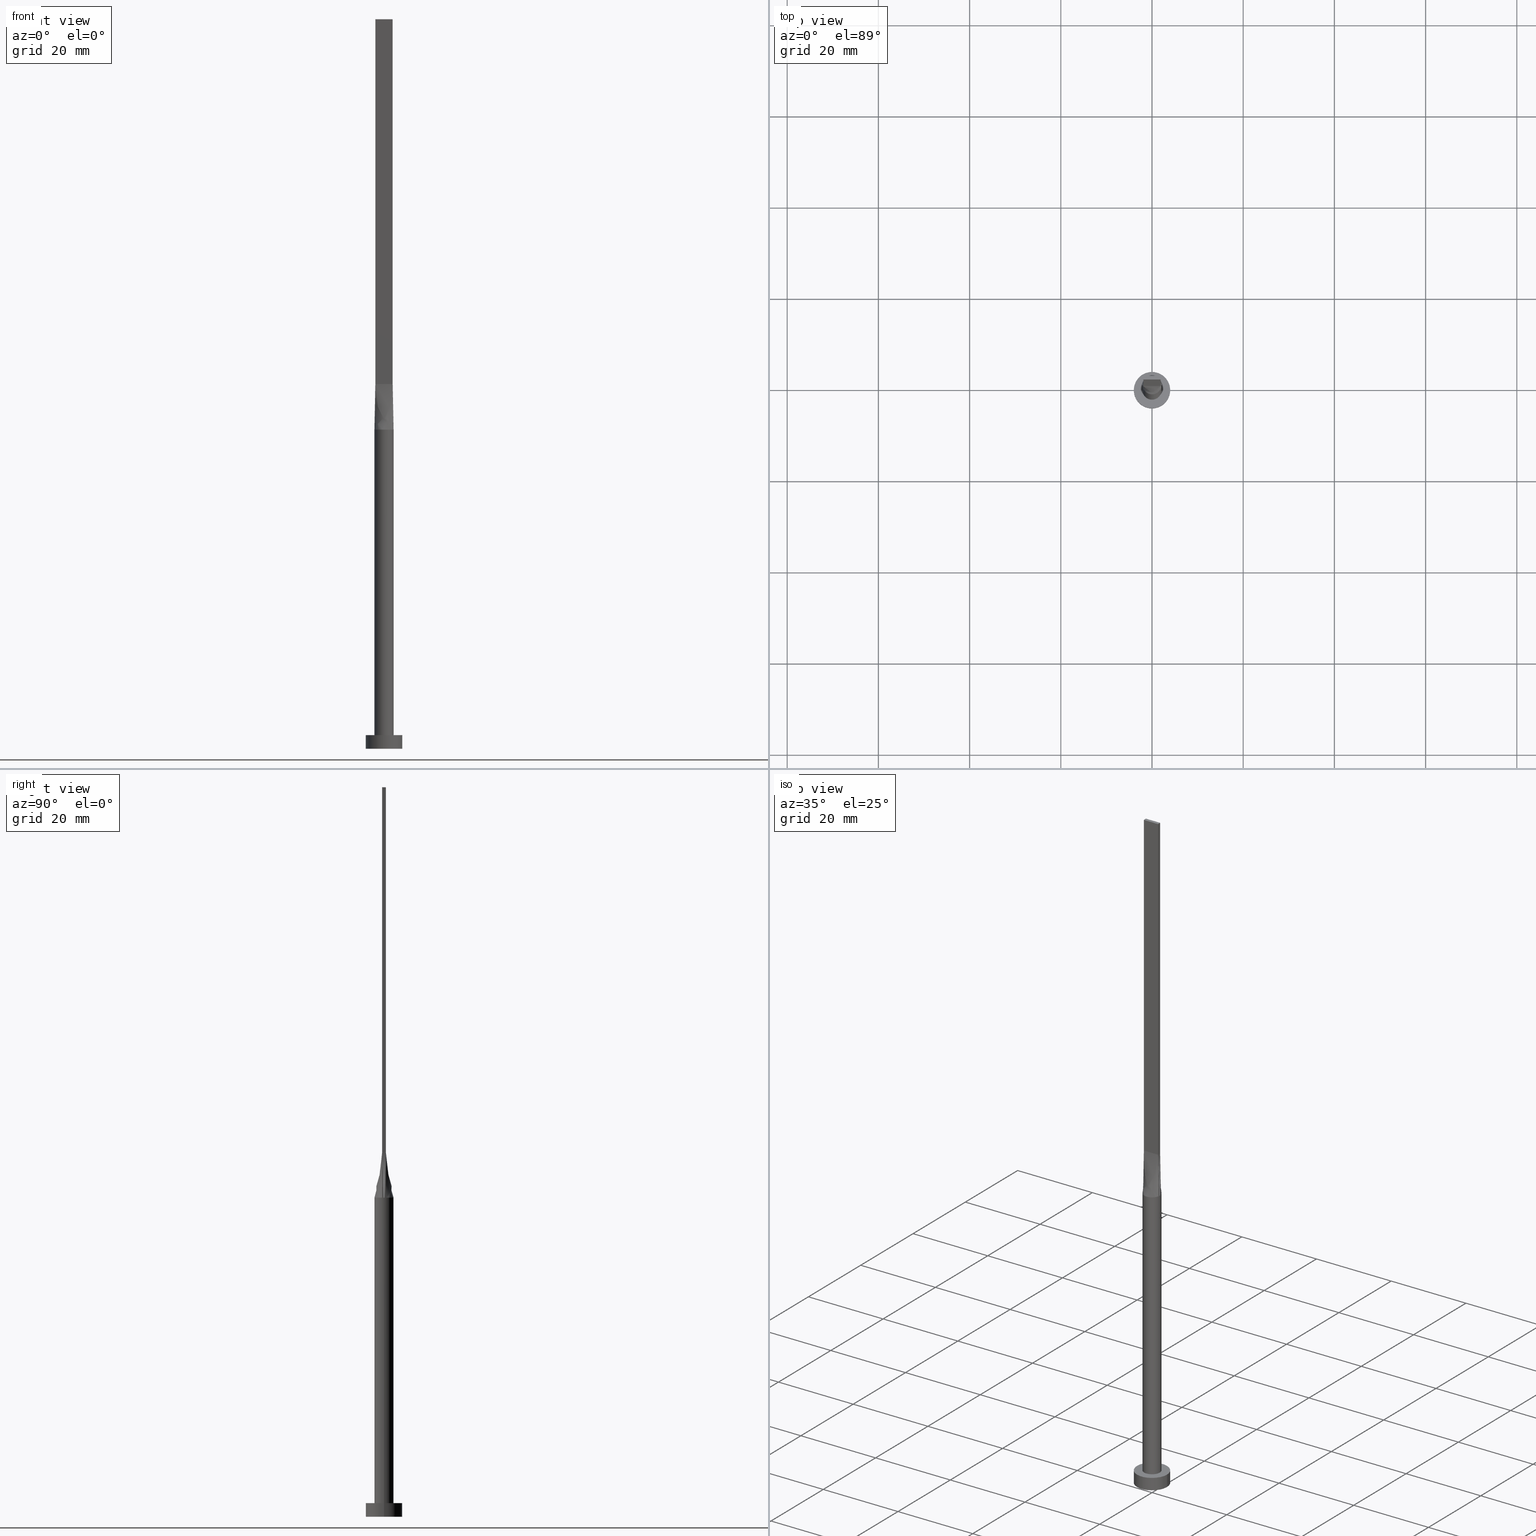
[diagram: canonical four-view strip — front | top / right | iso, engineering-drawing reading convention]
A machine part, canonical four-view strip (front | top / right | iso — engineering-drawing reading convention). The complete STEP part file that produces these views, byte-faithful:
ISO-10303-21;
HEADER;
FILE_DESCRIPTION (( 'STEP AP203' ),
    '1' );
FILE_NAME ('7342.STEP',
    '2026-02-12T09:03:49',
    ( '' ),
    ( '' ),
    'SwSTEP 2.0',
    'SolidWorks 2019',
    '' );
FILE_SCHEMA (( 'CONFIG_CONTROL_DESIGN' ));
ENDSEC;

DATA;
#1 = EDGE_CURVE ( 'NONE', #187, #110, #105, .T. ) ;
#2 = DIRECTION ( 'NONE',  ( -1.000000000000000000, 0.000000000000000000, 0.000000000000000000 ) ) ;
#3 = AXIS2_PLACEMENT_3D ( 'NONE', #476, #127, #439 ) ;
#4 =( GEOMETRIC_REPRESENTATION_CONTEXT ( 3 ) GLOBAL_UNCERTAINTY_ASSIGNED_CONTEXT ( ( #76 ) ) GLOBAL_UNIT_ASSIGNED_CONTEXT ( ( #72, #200, #67 ) ) REPRESENTATION_CONTEXT ( 'NONE', 'WORKASPACE' ) );
#5 = CARTESIAN_POINT ( 'NONE',  ( 0.3166666666666693164, -0.3999999999999996891, 79.99999999999998579 ) ) ;
#6 = CARTESIAN_POINT ( 'NONE',  ( -0.7916666666666639651, -0.3999999999999996336, 79.99999999999998579 ) ) ;
#7 = DATE_TIME_ROLE ( 'creation_date' ) ;
#8 = EDGE_LOOP ( 'NONE', ( #168, #121, #254, #238 ) ) ;
#9 = AXIS2_PLACEMENT_3D ( 'NONE', #568, #26, #203 ) ;
#10 = DATE_AND_TIME ( #272, #555 ) ;
#11 = CARTESIAN_POINT ( 'NONE',  ( -1.769939800381045147, 1.149026496286139842, 70.00000000000001421 ) ) ;
#12 = APPROVAL ( #546, 'NEUR�EN�' ) ;
#13 = APPROVAL_ROLE ( '' ) ;
#14 = PLANE ( 'NONE',  #81 ) ;
#15 = CARTESIAN_POINT ( 'NONE',  ( 0.000000000000000000, 0.000000000000000000, 0.000000000000000000 ) ) ;
#16 = ORIENTED_EDGE ( 'NONE', *, *, #98, .T. ) ;
#17 = COORDINATED_UNIVERSAL_TIME_OFFSET ( 1, 0, .AHEAD. ) ;
#18 = CARTESIAN_POINT ( 'NONE',  ( 0.1583333333333330206, 0.4000000000000001887, 80.00000000000000000 ) ) ;
#19 = ORIENTED_EDGE ( 'NONE', *, *, #530, .T. ) ;
#20 = CIRCLE ( 'NONE', #458, 2.100000000000000089 ) ;
#21 = DIRECTION ( 'NONE',  ( 8.131516293641283255E-16, 1.000000000000000000, 0.000000000000000000 ) ) ;
#22 = DATE_AND_TIME ( #416, #209 ) ;
#23 = PLANE ( 'NONE',  #310 ) ;
#24 = DIRECTION ( 'NONE',  ( 0.000000000000000000, 0.000000000000000000, 1.000000000000000000 ) ) ;
#25 = ORIENTED_EDGE ( 'NONE', *, *, #321, .T. ) ;
#26 = DIRECTION ( 'NONE',  ( 0.000000000000000000, -1.000000000000000000, 0.000000000000000000 ) ) ;
#27 = ADVANCED_FACE ( 'NONE', ( #249 ), #316, .T. ) ;
#28 = CARTESIAN_POINT ( 'NONE',  ( 0.000000000000000000, 0.000000000000000000, 0.000000000000000000 ) ) ;
#29 = VERTEX_POINT ( 'NONE', #498 ) ;
#30 = DIRECTION ( 'NONE',  ( 0.01549351246150993712, -0.003261792097159904157, 0.9998746480354023802 ) ) ;
#31 = DIRECTION ( 'NONE',  ( 1.000000000000000000, -2.710505431213761578E-16, 0.000000000000000000 ) ) ;
#32 = ORIENTED_EDGE ( 'NONE', *, *, #46, .T. ) ;
#33 = APPROVAL_PERSON_ORGANIZATION ( #497, #12, #55 ) ;
#34 = CARTESIAN_POINT ( 'NONE',  ( -1.638039177766652976, 1.336522195786985057, 70.00000000000001421 ) ) ;
#35 = VERTEX_POINT ( 'NONE', #467 ) ;
#36 = VECTOR ( 'NONE', #74, 1000.000000000000000 ) ;
#37 = AXIS2_PLACEMENT_3D ( 'NONE', #459, #420, #150 ) ;
#38 = CARTESIAN_POINT ( 'NONE',  ( 0.000000000000000000, 0.000000000000000000, 70.00000000000000000 ) ) ;
#39 = DIRECTION ( 'NONE',  ( -0.000000000000000000, -0.000000000000000000, -1.000000000000000000 ) ) ;
#40 = CARTESIAN_POINT ( 'NONE',  ( -1.769939800381045147, 1.149026496286139842, 70.00000000000001421 ) ) ;
#41 = CARTESIAN_POINT ( 'NONE',  ( -4.000000000000000000, 0.000000000000000000, 3.000000000000000000 ) ) ;
#42 = CARTESIAN_POINT ( 'NONE',  ( -0.2839879338753505955, 2.100000000000000533, 70.00000000000001421 ) ) ;
#43 = FACE_OUTER_BOUND ( 'NONE', #8, .T. ) ;
#44 = AXIS2_PLACEMENT_3D ( 'NONE', #513, #97, #297 ) ;
#45 = CARTESIAN_POINT ( 'NONE',  ( 2.054954548472172959, 0.4326220102046685612, 70.00000000000000000 ) ) ;
#46 = EDGE_CURVE ( 'NONE', #75, #29, #89, .T. ) ;
#47 = CARTESIAN_POINT ( 'NONE',  ( -0.6333333333333305282, -0.3999999999999996336, 79.99999999999998579 ) ) ;
#48 = CARTESIAN_POINT ( 'NONE',  ( -2.054954548472173403, -0.4326220102046674509, 70.00000000000000000 ) ) ;
#49 = CARTESIAN_POINT ( 'NONE',  ( -1.069497409764672113, -1.827724181718571650, 70.00000000000000000 ) ) ;
#50 = EDGE_CURVE ( 'NONE', #35, #152, #66, .T. ) ;
#51 = CARTESIAN_POINT ( 'NONE',  ( 1.769939800381043815, -1.149026496286140731, 70.00000000000001421 ) ) ;
#52 = APPROVAL_DATE_TIME ( #142, #405 ) ;
#53 = CARTESIAN_POINT ( 'NONE',  ( -0.5670887265440306413, -2.040296735810464668, 70.00000000000001421 ) ) ;
#54 = DIRECTION ( 'NONE',  ( -0.000000000000000000, -0.000000000000000000, -1.000000000000000000 ) ) ;
#55 = APPROVAL_ROLE ( '' ) ;
#56 = CC_DESIGN_DATE_AND_TIME_ASSIGNMENT ( #463, #149, ( #174 ) ) ;
#57 = CARTESIAN_POINT ( 'NONE',  ( -0.1583333333333336312, 0.4000000000000001887, 79.99999999999998579 ) ) ;
#58 = DIRECTION ( 'NONE',  ( 1.000000000000000000, 0.000000000000000000, 0.000000000000000000 ) ) ;
#59 = B_SPLINE_CURVE_WITH_KNOTS ( 'NONE', 3,
 ( #77, #389, #392, #485, #123, #251, #296, #442, #205, #42, #172, #342, #528, #34, #40, #78, #531, #85 ),
 .UNSPECIFIED., .F., .F.,
 ( 4, 2, 2, 2, 2, 2, 2, 2, 4 ),
 ( 0.000000000000000000, 0.1250000000000000000, 0.2500000000000000000, 0.3750000000000000000, 0.5000000000000000000, 0.6250000000000000000, 0.7500000000000000000, 0.8750000000000000000, 1.000000000000000000 ),
 .UNSPECIFIED. ) ;
#60 = EDGE_LOOP ( 'NONE', ( #115, #120, #516, #163, #114 ) ) ;
#61 = APPROVAL_STATUS ( 'not_yet_approved' ) ;
#62 = CARTESIAN_POINT ( 'NONE',  ( -2.100000000000000089, 0.000000000000000000, 70.00000000000000000 ) ) ;
#63 = CARTESIAN_POINT ( 'NONE',  ( -2.054954548472173403, 0.4326220102046675064, 70.00000000000000000 ) ) ;
#64 = PRODUCT_DEFINITION_SHAPE ( 'NONE', 'NONE',  #517 ) ;
#65 = ORIENTED_EDGE ( 'NONE', *, *, #358, .F. ) ;
#66 = LINE ( 'NONE', #518, #36 ) ;
#67 =( NAMED_UNIT ( * ) SI_UNIT ( $, .STERADIAN. ) SOLID_ANGLE_UNIT ( ) );
#68 = CARTESIAN_POINT ( 'NONE',  ( 0.2839879338753505955, 2.100000000000000533, 70.00000000000000000 ) ) ;
#69 = ORIENTED_EDGE ( 'NONE', *, *, #257, .F. ) ;
#70 = CLOSED_SHELL ( 'NONE', ( #27, #477, #218, #520, #575, #478, #496, #352, #507, #406, #101, #82, #368, #229, #279 ) ) ;
#71 = CARTESIAN_POINT ( 'NONE',  ( 1.899999999999999023, -0.3999999999999998002, 160.0000000000000000 ) ) ;
#72 =( LENGTH_UNIT ( ) NAMED_UNIT ( * ) SI_UNIT ( .MILLI., .METRE. ) );
#73 = ORIENTED_EDGE ( 'NONE', *, *, #413, .T. ) ;
#74 = DIRECTION ( 'NONE',  ( 1.000000000000000000, -5.706327223607920020E-17, 0.000000000000000000 ) ) ;
#75 = VERTEX_POINT ( 'NONE', #239 ) ;
#76 = UNCERTAINTY_MEASURE_WITH_UNIT (LENGTH_MEASURE( 1.000000000000000082E-05 ), #72, 'distance_accuracy_value', 'NONE');
#77 = CARTESIAN_POINT ( 'NONE',  ( 2.055132260641998609, 0.4326595789354660826, 70.00000000000000000 ) ) ;
#78 = CARTESIAN_POINT ( 'NONE',  ( -1.960396204527856456, 0.7808940436533434726, 70.00000000000001421 ) ) ;
#79 = CIRCLE ( 'NONE', #141, 2.100000000000000089 ) ;
#80 = CARTESIAN_POINT ( 'NONE',  ( 4.000000000000000000, 4.898587196589412829E-16, 3.000000000000000000 ) ) ;
#81 = AXIS2_PLACEMENT_3D ( 'NONE', #247, #329, #289 ) ;
#82 = ADVANCED_FACE ( 'NONE', ( #286 ), #424, .F. ) ;
#83 = DIRECTION ( 'NONE',  ( -2.710505431213761085E-16, 1.000000000000000000, -0.000000000000000000 ) ) ;
#84 = CARTESIAN_POINT ( 'NONE',  ( 1.977477274236086213, 0.4163110051023343749, 75.00000000000001421 ) ) ;
#85 = CARTESIAN_POINT ( 'NONE',  ( -2.055148177435248691, 0.4326628259079252081, 70.00000000000000000 ) ) ;
#86 = CARTESIAN_POINT ( 'NONE',  ( 1.899999999999999689, -0.1333333333333336368, 79.99999999999998579 ) ) ;
#87 = EDGE_CURVE ( 'NONE', #152, #524, #381, .T. ) ;
#88 = LINE ( 'NONE', #580, #446 ) ;
#89 = CIRCLE ( 'NONE', #519, 4.000000000000000000 ) ;
#90 = CARTESIAN_POINT ( 'NONE',  ( -1.899999999999999689, -0.1333333333333330539, 79.99999999999998579 ) ) ;
#91 = CARTESIAN_POINT ( 'NONE',  ( 2.054954548472172959, -0.4326220102046682281, 70.00000000000000000 ) ) ;
#92 = CC_DESIGN_PERSON_AND_ORGANIZATION_ASSIGNMENT ( #411, #552, ( #174 ) ) ;
#93 = EDGE_CURVE ( 'NONE', #563, #363, #455, .T. ) ;
#94 = CARTESIAN_POINT ( 'NONE',  ( -2.054954548472173403, -0.4326220102046674509, 70.00000000000000000 ) ) ;
#95 = AXIS2_PLACEMENT_3D ( 'NONE', #161, #318, #156 ) ;
#96 = CARTESIAN_POINT ( 'NONE',  ( -1.108333333333330950, -0.3999999999999995781, 79.99999999999998579 ) ) ;
#97 = DIRECTION ( 'NONE',  ( 0.000000000000000000, 0.000000000000000000, 1.000000000000000000 ) ) ;
#98 = EDGE_CURVE ( 'NONE', #152, #118, #167, .T. ) ;
#99 = ORIENTED_EDGE ( 'NONE', *, *, #413, .F. ) ;
#100 = CARTESIAN_POINT ( 'NONE',  ( -0.5670887265440298641, 2.040296735810464668, 70.00000000000001421 ) ) ;
#101 = ADVANCED_FACE ( 'NONE', ( #410 ), #431, .F. ) ;
#102 = SECURITY_CLASSIFICATION_LEVEL ( 'unclassified' ) ;
#103 = DIRECTION ( 'NONE',  ( -0.000000000000000000, -0.000000000000000000, -1.000000000000000000 ) ) ;
#104 = CARTESIAN_POINT ( 'NONE',  ( -1.069497409764671003, 1.827724181718571872, 70.00000000000000000 ) ) ;
#105 = CIRCLE ( 'NONE', #44, 2.100000000000000089 ) ;
#106 = EDGE_LOOP ( 'NONE', ( #376, #19, #124, #495, #99, #338 ) ) ;
#107 = VECTOR ( 'NONE', #508, 1000.000000000000000 ) ;
#108 = LINE ( 'NONE', #278, #506 ) ;
#109 = CARTESIAN_POINT ( 'NONE',  ( 2.055132260641998609, 0.4326595789354660826, 70.00000000000000000 ) ) ;
#110 = VERTEX_POINT ( 'NONE', #206 ) ;
#111 = APPLICATION_PROTOCOL_DEFINITION ( 'international standard', 'config_control_design', 1994, #262 ) ;
#112 = CARTESIAN_POINT ( 'NONE',  ( -1.741666666666666474, 0.4000000000000002442, 79.99999999999998579 ) ) ;
#113 = ORIENTED_EDGE ( 'NONE', *, *, #250, .F. ) ;
#114 = ORIENTED_EDGE ( 'NONE', *, *, #393, .F. ) ;
#115 = ORIENTED_EDGE ( 'NONE', *, *, #313, .T. ) ;
#116 = CARTESIAN_POINT ( 'NONE',  ( -1.899999999999999911, -0.3999999999999995781, 80.00000000000000000 ) ) ;
#117 = LOCAL_TIME ( 10, 3, 49.00000000000000000, #549 ) ;
#118 = VERTEX_POINT ( 'NONE', #522 ) ;
#119 = AXIS2_PLACEMENT_3D ( 'NONE', #217, #396, #176 ) ;
#120 = ORIENTED_EDGE ( 'NONE', *, *, #400, .T. ) ;
#121 = ORIENTED_EDGE ( 'NONE', *, *, #426, .T. ) ;
#122 = VERTEX_POINT ( 'NONE', #304 ) ;
#123 = CARTESIAN_POINT ( 'NONE',  ( 1.638039177766652754, 1.336522195786985057, 70.00000000000001421 ) ) ;
#124 = ORIENTED_EDGE ( 'NONE', *, *, #188, .T. ) ;
#125 = CARTESIAN_POINT ( 'NONE',  ( -1.977477274236086657, 0.4163110051023338753, 75.00000000000001421 ) ) ;
#126 = DIRECTION ( 'NONE',  ( 0.000000000000000000, 0.000000000000000000, 1.000000000000000000 ) ) ;
#127 = DIRECTION ( 'NONE',  ( -1.000000000000000000, 8.131516293641283255E-16, 0.000000000000000000 ) ) ;
#128 = CARTESIAN_POINT ( 'NONE',  ( 2.099516882689679953, 0.1457539759246152533, 70.00000000000000000 ) ) ;
#129 = CARTESIAN_POINT ( 'NONE',  ( 0.000000000000000000, 0.000000000000000000, 3.000000000000000000 ) ) ;
#130 = LINE ( 'NONE', #80, #265 ) ;
#131 = EDGE_CURVE ( 'NONE', #475, #276, #59, .T. ) ;
#132 = CARTESIAN_POINT ( 'NONE',  ( 2.084662771283844140, -0.2915079518492312838, 70.00000000000000000 ) ) ;
#133 = DIRECTION ( 'NONE',  ( -0.01549351246150995794, 0.003261792097160017348, 0.9998746480354023802 ) ) ;
#134 = DIRECTION ( 'NONE',  ( -1.000000000000000000, 0.000000000000000000, 0.000000000000000000 ) ) ;
#135 = AXIS2_PLACEMENT_3D ( 'NONE', #527, #126, #300 ) ;
#136 = CARTESIAN_POINT ( 'NONE',  ( -1.288188016604684627, -1.676316068528187930, 70.00000000000001421 ) ) ;
#137 = EDGE_CURVE ( 'NONE', #276, #363, #525, .T. ) ;
#138 = CARTESIAN_POINT ( 'NONE',  ( -1.638039177766652310, -1.336522195786983724, 69.99999999999998579 ) ) ;
#139 = CARTESIAN_POINT ( 'NONE',  ( -1.769939800381044481, -1.149026496286139176, 70.00000000000000000 ) ) ;
#140 = CC_DESIGN_APPROVAL ( #405, ( #226 ) ) ;
#141 = AXIS2_PLACEMENT_3D ( 'NONE', #302, #481, #532 ) ;
#142 = DATE_AND_TIME ( #191, #117 ) ;
#143 = ORIENTED_EDGE ( 'NONE', *, *, #1, .F. ) ;
#144 = CARTESIAN_POINT ( 'NONE',  ( -0.7916666666666668517, 0.4000000000000002442, 79.99999999999998579 ) ) ;
#145 = EDGE_CURVE ( 'NONE', #118, #202, #169, .T. ) ;
#146 = PERSON_AND_ORGANIZATION_ROLE ( 'creator' ) ;
#147 = CARTESIAN_POINT ( 'NONE',  ( 1.899999999999999689, 0.4000000000000002442, 160.0000000000000000 ) ) ;
#148 = CARTESIAN_POINT ( 'NONE',  ( 0.6333333333333331927, 0.4000000000000001887, 79.99999999999998579 ) ) ;
#149 = DATE_TIME_ROLE ( 'classification_date' ) ;
#150 = DIRECTION ( 'NONE',  ( 1.000000000000000000, 0.000000000000000000, 0.000000000000000000 ) ) ;
#151 = LINE ( 'NONE', #457, #182 ) ;
#152 = VERTEX_POINT ( 'NONE', #436 ) ;
#153 = PRODUCT ( '7342', '7342', '', ( #564 ) ) ;
#154 = CARTESIAN_POINT ( 'NONE',  ( 1.960396204527856900, 0.7808940436533436946, 70.00000000000000000 ) ) ;
#155 = ORIENTED_EDGE ( 'NONE', *, *, #93, .F. ) ;
#156 = DIRECTION ( 'NONE',  ( -1.000000000000000000, 0.000000000000000000, 0.000000000000000000 ) ) ;
#157 = EDGE_LOOP ( 'NONE', ( #281, #245, #248, #512 ) ) ;
#158 = PERSON_AND_ORGANIZATION ( #422, #492 ) ;
#159 = DIRECTION ( 'NONE',  ( 1.000000000000000000, 0.000000000000000000, 0.000000000000000000 ) ) ;
#160 = ORIENTED_EDGE ( 'NONE', *, *, #565, .T. ) ;
#161 = CARTESIAN_POINT ( 'NONE',  ( 0.000000000000000000, 0.000000000000000000, 70.00000000000000000 ) ) ;
#162 = FACE_OUTER_BOUND ( 'NONE', #430, .T. ) ;
#163 = ORIENTED_EDGE ( 'NONE', *, *, #145, .F. ) ;
#164 = PLANE ( 'NONE',  #3 ) ;
#165 = PRODUCT_RELATED_PRODUCT_CATEGORY ( 'detail', '', ( #153 ) ) ;
#166 = VECTOR ( 'NONE', #571, 1000.000000000000000 ) ;
#167 = LINE ( 'NONE', #560, #438 ) ;
#168 = ORIENTED_EDGE ( 'NONE', *, *, #540, .T. ) ;
#169 = LINE ( 'NONE', #216, #253 ) ;
#170 = EDGE_CURVE ( 'NONE', #363, #293, #252, .T. ) ;
#171 = CARTESIAN_POINT ( 'NONE',  ( 0.000000000000000000, 0.000000000000000000, 160.0000000000000000 ) ) ;
#172 = CARTESIAN_POINT ( 'NONE',  ( -0.5670887265440298641, 2.040296735810464668, 70.00000000000001421 ) ) ;
#173 = PLANE ( 'NONE',  #221 ) ;
#174 = SECURITY_CLASSIFICATION ( '', '', #102 ) ;
#175 = CARTESIAN_POINT ( 'NONE',  ( -2.055145036631130129, -0.4326623253166036465, 70.00000000000000000 ) ) ;
#176 = DIRECTION ( 'NONE',  ( -1.000000000000000000, 5.706327223607918787E-17, 0.000000000000000000 ) ) ;
#177 = CARTESIAN_POINT ( 'NONE',  ( 2.099758441344840243, 4.928843353830161703E-16, 70.00000000000000000 ) ) ;
#178 = LINE ( 'NONE', #41, #488 ) ;
#179 = CARTESIAN_POINT ( 'NONE',  ( -1.899999999999999689, -0.2666666666666662744, 79.99999999999998579 ) ) ;
#180 = CARTESIAN_POINT ( 'NONE',  ( -1.899999999999999911, -0.3999999999999995781, 80.00000000000000000 ) ) ;
#181 = VECTOR ( 'NONE', #219, 1000.000000000000000 ) ;
#182 = VECTOR ( 'NONE', #325, 1000.000000000000000 ) ;
#183 = EDGE_CURVE ( 'NONE', #202, #363, #395, .T. ) ;
#184 = CARTESIAN_POINT ( 'NONE',  ( -1.583333333333332149, -0.3999999999999995226, 79.99999999999998579 ) ) ;
#185 = CARTESIAN_POINT ( 'NONE',  ( 1.741666666666666030, -0.3999999999999997446, 79.99999999999998579 ) ) ;
#186 = SHAPE_DEFINITION_REPRESENTATION ( #64, #360 ) ;
#187 = VERTEX_POINT ( 'NONE', #339 ) ;
#188 = EDGE_CURVE ( 'NONE', #110, #187, #427, .T. ) ;
#189 = CARTESIAN_POINT ( 'NONE',  ( 0.000000000000000000, 0.000000000000000000, 0.000000000000000000 ) ) ;
#190 = CARTESIAN_POINT ( 'NONE',  ( 1.108333333333333171, 0.4000000000000002442, 79.99999999999998579 ) ) ;
#191 = CALENDAR_DATE ( 2026, 12, 2 ) ;
#192 = LINE ( 'NONE', #62, #213 ) ;
#193 = DIRECTION ( 'NONE',  ( 0.000000000000000000, 0.000000000000000000, 1.000000000000000000 ) ) ;
#194 = VERTEX_POINT ( 'NONE', #175 ) ;
#195 = PERSON_AND_ORGANIZATION ( #422, #492 ) ;
#196 = DIRECTION ( 'NONE',  ( -0.000000000000000000, -0.000000000000000000, -1.000000000000000000 ) ) ;
#197 = CARTESIAN_POINT ( 'NONE',  ( 0.000000000000000000, 0.000000000000000000, 3.000000000000000000 ) ) ;
#198 = ORIENTED_EDGE ( 'NONE', *, *, #450, .T. ) ;
#199 = DIRECTION ( 'NONE',  ( 1.000000000000000000, 0.000000000000000000, 0.000000000000000000 ) ) ;
#200 =( NAMED_UNIT ( * ) PLANE_ANGLE_UNIT ( ) SI_UNIT ( $, .RADIAN. ) );
#201 = CARTESIAN_POINT ( 'NONE',  ( 0.3166666666666663743, 0.4000000000000001887, 79.99999999999998579 ) ) ;
#202 = VERTEX_POINT ( 'NONE', #444 ) ;
#203 = DIRECTION ( 'NONE',  ( 0.000000000000000000, -0.000000000000000000, -1.000000000000000000 ) ) ;
#204 = EDGE_LOOP ( 'NONE', ( #386, #32 ) ) ;
#205 = CARTESIAN_POINT ( 'NONE',  ( 0.2839879338753505955, 2.100000000000000533, 70.00000000000000000 ) ) ;
#206 = CARTESIAN_POINT ( 'NONE',  ( 2.100000000000000089, 2.571758278209441957E-16, 3.000000000000000000 ) ) ;
#207 = EDGE_LOOP ( 'NONE', ( #471, #466, #437, #514 ) ) ;
#208 = EDGE_CURVE ( 'NONE', #293, #194, #210, .T. ) ;
#209 = LOCAL_TIME ( 10, 3, 49.00000000000000000, #240 ) ;
#210 = LINE ( 'NONE', #384, #244 ) ;
#211 = CIRCLE ( 'NONE', #355, 4.000000000000000000 ) ;
#212 = ORIENTED_EDGE ( 'NONE', *, *, #250, .T. ) ;
#213 = VECTOR ( 'NONE', #196, 1000.000000000000000 ) ;
#214 = DIRECTION ( 'NONE',  ( 0.000000000000000000, 0.000000000000000000, 1.000000000000000000 ) ) ;
#215 = DIRECTION ( 'NONE',  ( 0.000000000000000000, 0.000000000000000000, 1.000000000000000000 ) ) ;
#216 = CARTESIAN_POINT ( 'NONE',  ( 1.899999999999999689, 0.4000000000000002442, 80.00000000000000000 ) ) ;
#217 = CARTESIAN_POINT ( 'NONE',  ( -1.899999999999999911, -0.3999999999999995781, 160.0000000000000000 ) ) ;
#218 = ADVANCED_FACE ( 'NONE', ( #345 ), #298, .T. ) ;
#219 = DIRECTION ( 'NONE',  ( -1.000000000000000000, -0.000000000000000000, -0.000000000000000000 ) ) ;
#220 = MANIFOLD_SOLID_BREP ( 'P�idat vysunut�m5', #70 ) ;
#221 = AXIS2_PLACEMENT_3D ( 'NONE', #171, #222, #349 ) ;
#222 = DIRECTION ( 'NONE',  ( 0.000000000000000000, 0.000000000000000000, 1.000000000000000000 ) ) ;
#223 = CARTESIAN_POINT ( 'NONE',  ( 2.055161022591414977, -0.4326655822303633325, 70.00000000000000000 ) ) ;
#224 = CARTESIAN_POINT ( 'NONE',  ( -1.899999999999999467, 0.1333333333333335535, 79.99999999999998579 ) ) ;
#225 = CARTESIAN_POINT ( 'NONE',  ( 1.899999999999999023, -0.3999999999999998002, 80.00000000000000000 ) ) ;
#226 = PRODUCT_DEFINITION_FORMATION_WITH_SPECIFIED_SOURCE ( 'LIBOVOLN�', '', #153, .NOT_KNOWN. ) ;
#227 = FACE_OUTER_BOUND ( 'NONE', #207, .T. ) ;
#228 = CARTESIAN_POINT ( 'NONE',  ( 1.960396204527856234, -0.7808940436533445828, 70.00000000000001421 ) ) ;
#229 = ADVANCED_FACE ( 'NONE', ( #567 ), #164, .F. ) ;
#230 = CARTESIAN_POINT ( 'NONE',  ( -0.2839879338753514282, -2.100000000000000533, 70.00000000000000000 ) ) ;
#231 = DIRECTION ( 'NONE',  ( -0.000000000000000000, -0.000000000000000000, -1.000000000000000000 ) ) ;
#232 = PERSON_AND_ORGANIZATION_ROLE ( 'design_supplier' ) ;
#233 = CARTESIAN_POINT ( 'NONE',  ( 0.7916666666666665186, 0.4000000000000001887, 79.99999999999998579 ) ) ;
#234 = PERSON_AND_ORGANIZATION ( #422, #492 ) ;
#235 = DIRECTION ( 'NONE',  ( 0.000000000000000000, 0.000000000000000000, 1.000000000000000000 ) ) ;
#236 = ORIENTED_EDGE ( 'NONE', *, *, #183, .F. ) ;
#237 = CYLINDRICAL_SURFACE ( 'NONE', #460, 4.000000000000000000 ) ;
#238 = ORIENTED_EDGE ( 'NONE', *, *, #87, .T. ) ;
#239 = CARTESIAN_POINT ( 'NONE',  ( 4.000000000000000000, 4.898587196589412829E-16, 3.000000000000000000 ) ) ;
#240 = COORDINATED_UNIVERSAL_TIME_OFFSET ( 1, 0, .AHEAD. ) ;
#241 = CC_DESIGN_APPROVAL ( #12, ( #174 ) ) ;
#242 = PERSON_AND_ORGANIZATION_ROLE ( 'design_owner' ) ;
#243 = CARTESIAN_POINT ( 'NONE',  ( -0.2839879338753505955, 2.100000000000000533, 70.00000000000001421 ) ) ;
#244 = VECTOR ( 'NONE', #256, 1000.000000000000227 ) ;
#245 = ORIENTED_EDGE ( 'NONE', *, *, #98, .F. ) ;
#246 = CARTESIAN_POINT ( 'NONE',  ( -1.899999999999999689, 0.4000000000000002442, 160.0000000000000000 ) ) ;
#247 = CARTESIAN_POINT ( 'NONE',  ( 0.000000000000000000, 0.000000000000000000, 3.000000000000000000 ) ) ;
#248 = ORIENTED_EDGE ( 'NONE', *, *, #50, .F. ) ;
#249 = FACE_OUTER_BOUND ( 'NONE', #106, .T. ) ;
#250 = EDGE_CURVE ( 'NONE', #122, #194, #314, .T. ) ;
#251 = CARTESIAN_POINT ( 'NONE',  ( 1.288188016604684183, 1.676316068528189041, 70.00000000000001421 ) ) ;
#252 = LINE ( 'NONE', #259, #166 ) ;
#253 = VECTOR ( 'NONE', #83, 1000.000000000000000 ) ;
#254 = ORIENTED_EDGE ( 'NONE', *, *, #50, .T. ) ;
#255 = CARTESIAN_POINT ( 'NONE',  ( -1.899999999999999911, -0.3999999999999995781, 80.00000000000000000 ) ) ;
#256 = DIRECTION ( 'NONE',  ( -0.01549351246150991457, -0.003261792097159958367, -0.9998746480354023802 ) ) ;
#257 = EDGE_CURVE ( 'NONE', #194, #335, #79, .T. ) ;
#258 = CARTESIAN_POINT ( 'NONE',  ( 1.899999999999999467, 0.1333333333333330262, 79.99999999999998579 ) ) ;
#259 = CARTESIAN_POINT ( 'NONE',  ( -1.899999999999999689, 0.4000000000000002442, 80.00000000000000000 ) ) ;
#260 = CARTESIAN_POINT ( 'NONE',  ( 1.899999999999999467, 0.2666666666666664964, 79.99999999999998579 ) ) ;
#261 = CARTESIAN_POINT ( 'NONE',  ( -2.055148177435248691, 0.4326628259079252081, 70.00000000000000000 ) ) ;
#262 = APPLICATION_CONTEXT ( 'configuration controlled 3d designs of mechanical parts and assemblies' ) ;
#263 = CARTESIAN_POINT ( 'NONE',  ( -1.266666666666664609, -0.3999999999999995226, 79.99999999999998579 ) ) ;
#264 = CARTESIAN_POINT ( 'NONE',  ( -2.054954548472173403, 0.4326220102046679505, 70.00000000000000000 ) ) ;
#265 = VECTOR ( 'NONE', #39, 1000.000000000000000 ) ;
#266 = CARTESIAN_POINT ( 'NONE',  ( 0.1583333333333359905, -0.3999999999999996336, 79.99999999999998579 ) ) ;
#267 = CARTESIAN_POINT ( 'NONE',  ( 0.6333333333333355242, -0.3999999999999997446, 79.99999999999998579 ) ) ;
#268 = CARTESIAN_POINT ( 'NONE',  ( -1.899999999999999689, 0.4000000000000002442, 160.0000000000000000 ) ) ;
#269 = DIRECTION ( 'NONE',  ( 0.000000000000000000, 0.000000000000000000, 1.000000000000000000 ) ) ;
#270 = CARTESIAN_POINT ( 'NONE',  ( -1.899999999999999689, 0.4000000000000002442, 80.00000000000000000 ) ) ;
#271 = CC_DESIGN_SECURITY_CLASSIFICATION ( #174, ( #226 ) ) ;
#272 = CALENDAR_DATE ( 2026, 12, 2 ) ;
#273 = AXIS2_PLACEMENT_3D ( 'NONE', #38, #214, #572 ) ;
#274 = CARTESIAN_POINT ( 'NONE',  ( 0.000000000000000000, 0.000000000000000000, 70.00000000000000000 ) ) ;
#275 = CIRCLE ( 'NONE', #483, 4.000000000000000000 ) ;
#276 = VERTEX_POINT ( 'NONE', #261 ) ;
#277 = CALENDAR_DATE ( 2026, 12, 2 ) ;
#278 = CARTESIAN_POINT ( 'NONE',  ( 2.100000000000000089, 2.571758278209441957E-16, 70.00000000000000000 ) ) ;
#279 = ADVANCED_FACE ( 'NONE', ( #43 ), #173, .T. ) ;
#280 = FACE_OUTER_BOUND ( 'NONE', #343, .T. ) ;
#281 = ORIENTED_EDGE ( 'NONE', *, *, #456, .T. ) ;
#282 = PERSON_AND_ORGANIZATION ( #422, #492 ) ;
#283 = CARTESIAN_POINT ( 'NONE',  ( 2.019676033883313515, 0.6001949545017501997, 70.00000000000001421 ) ) ;
#284 = EDGE_LOOP ( 'NONE', ( #299, #155, #503, #462 ) ) ;
#285 = CC_DESIGN_PERSON_AND_ORGANIZATION_ASSIGNMENT ( #234, #370, ( #517 ) ) ;
#286 = FACE_OUTER_BOUND ( 'NONE', #556, .T. ) ;
#287 = ORIENTED_EDGE ( 'NONE', *, *, #137, .F. ) ;
#288 = LOCAL_TIME ( 10, 3, 49.00000000000000000, #17 ) ;
#289 = DIRECTION ( 'NONE',  ( 1.000000000000000000, 0.000000000000000000, -0.000000000000000000 ) ) ;
#290 = CIRCLE ( 'NONE', #545, 2.100000000000000089 ) ;
#291 = EDGE_CURVE ( 'NONE', #75, #327, #130, .T. ) ;
#292 = EDGE_LOOP ( 'NONE', ( #377, #383, #25, #160 ) ) ;
#293 = VERTEX_POINT ( 'NONE', #255 ) ;
#294 = ORIENTED_EDGE ( 'NONE', *, *, #291, .T. ) ;
#295 = VERTEX_POINT ( 'NONE', #346 ) ;
#296 = CARTESIAN_POINT ( 'NONE',  ( 1.069497409764671003, 1.827724181718572538, 70.00000000000000000 ) ) ;
#297 = DIRECTION ( 'NONE',  ( 1.000000000000000000, 0.000000000000000000, 0.000000000000000000 ) ) ;
#298 = CYLINDRICAL_SURFACE ( 'NONE', #347, 4.000000000000000000 ) ;
#299 = ORIENTED_EDGE ( 'NONE', *, *, #183, .T. ) ;
#300 = DIRECTION ( 'NONE',  ( 1.000000000000000000, 0.000000000000000000, 0.000000000000000000 ) ) ;
#301 = EDGE_CURVE ( 'NONE', #524, #202, #484, .T. ) ;
#302 = CARTESIAN_POINT ( 'NONE',  ( 0.000000000000000000, 0.000000000000000000, 70.00000000000000000 ) ) ;
#303 = CARTESIAN_POINT ( 'NONE',  ( 1.899999999999999689, 0.4000000000000002442, 80.00000000000000000 ) ) ;
#304 = CARTESIAN_POINT ( 'NONE',  ( -2.099758441344840243, -1.448674240509545331E-15, 70.00000000000000000 ) ) ;
#305 = CARTESIAN_POINT ( 'NONE',  ( 1.899999999999999689, 0.4000000000000002442, 160.0000000000000000 ) ) ;
#306 = DIRECTION ( 'NONE',  ( -0.01549351246150989375, -0.003261792097160006506, 0.9998746480354023802 ) ) ;
#307 = EDGE_CURVE ( 'NONE', #475, #202, #401, .T. ) ;
#308 = VECTOR ( 'NONE', #344, 1000.000000000000000 ) ;
#309 = CARTESIAN_POINT ( 'NONE',  ( 1.288188016604683739, -1.676316068528189263, 70.00000000000001421 ) ) ;
#310 = AXIS2_PLACEMENT_3D ( 'NONE', #28, #371, #501 ) ;
#311 = CARTESIAN_POINT ( 'NONE',  ( -0.1583333333333305781, -0.3999999999999996336, 79.99999999999998579 ) ) ;
#312 = FACE_OUTER_BOUND ( 'NONE', #473, .T. ) ;
#313 = EDGE_CURVE ( 'NONE', #335, #391, #290, .T. ) ;
#314 = CIRCLE ( 'NONE', #273, 2.100000000000000089 ) ;
#315 = CARTESIAN_POINT ( 'NONE',  ( -2.099516882689679953, 0.1457539759246153366, 70.00000000000000000 ) ) ;
#316 = CYLINDRICAL_SURFACE ( 'NONE', #95, 2.100000000000000089 ) ;
#317 = COORDINATED_UNIVERSAL_TIME_OFFSET ( 1, 0, .AHEAD. ) ;
#318 = DIRECTION ( 'NONE',  ( -0.000000000000000000, -0.000000000000000000, -1.000000000000000000 ) ) ;
#319 = CARTESIAN_POINT ( 'NONE',  ( 1.899999999999999689, 0.4000000000000002442, 80.00000000000000000 ) ) ;
#320 = DATE_AND_TIME ( #277, #404 ) ;
#321 = EDGE_CURVE ( 'NONE', #29, #295, #178, .T. ) ;
#322 = CARTESIAN_POINT ( 'NONE',  ( 1.899999999999999689, 0.4000000000000002442, 160.0000000000000000 ) ) ;
#323 = FACE_OUTER_BOUND ( 'NONE', #521, .T. ) ;
#324 = ORIENTED_EDGE ( 'NONE', *, *, #301, .F. ) ;
#325 = DIRECTION ( 'NONE',  ( 1.000000000000000000, -5.706327223607918787E-17, 0.000000000000000000 ) ) ;
#326 = B_SPLINE_SURFACE_WITH_KNOTS ( 'NONE', 3, 1, ( 
 ( #94, #180 ),
 ( #494, #490 ),
 ( #451, #184 ),
 ( #139, #263 ),
 ( #138, #96 ),
 ( #136, #6 ),
 ( #49, #47 ),
 ( #53, #407 ),
 ( #230, #311 ),
 ( #409, #266 ),
 ( #356, #5 ),
 ( #449, #267 ),
 ( #309, #408 ),
 ( #448, #452 ),
 ( #51, #541 ),
 ( #228, #357 ),
 ( #489, #185 ),
 ( #91, #225 ) ),
 .UNSPECIFIED., .F., .F., .F.,
 ( 4, 2, 2, 2, 2, 2, 2, 2, 4 ),
 ( 2, 2 ),
 ( 0.000000000000000000, 0.1250000000000000833, 0.2500000000000001110, 0.3750000000000001110, 0.5000000000000001110, 0.6250000000000001110, 0.7500000000000000000, 0.8750000000000000000, 1.000000000000000000 ),
 ( 0.000000000000000000, 1.000000000000000000 ),
 .UNSPECIFIED. ) ;
#327 = VERTEX_POINT ( 'NONE', #399 ) ;
#328 = APPROVAL_DATE_TIME ( #10, #12 ) ;
#329 = DIRECTION ( 'NONE',  ( 0.000000000000000000, 0.000000000000000000, 1.000000000000000000 ) ) ;
#330 = CARTESIAN_POINT ( 'NONE',  ( 1.638039177766652754, 1.336522195786985057, 70.00000000000001421 ) ) ;
#331 = ORIENTED_EDGE ( 'NONE', *, *, #87, .F. ) ;
#332 = ORIENTED_EDGE ( 'NONE', *, *, #307, .F. ) ;
#333 = APPROVAL_STATUS ( 'not_yet_approved' ) ;
#334 = DIRECTION ( 'NONE',  ( 1.000000000000000000, 0.000000000000000000, 0.000000000000000000 ) ) ;
#335 = VERTEX_POINT ( 'NONE', #223 ) ;
#336 = CARTESIAN_POINT ( 'NONE',  ( 0.000000000000000000, 0.000000000000000000, 3.000000000000000000 ) ) ;
#337 = ORIENTED_EDGE ( 'NONE', *, *, #426, .F. ) ;
#338 = ORIENTED_EDGE ( 'NONE', *, *, #131, .F. ) ;
#339 = CARTESIAN_POINT ( 'NONE',  ( -2.100000000000000089, 0.000000000000000000, 3.000000000000000000 ) ) ;
#340 = ORIENTED_EDGE ( 'NONE', *, *, #1, .T. ) ;
#341 = EDGE_LOOP ( 'NONE', ( #73, #212, #435, #569, #287 ) ) ;
#342 = CARTESIAN_POINT ( 'NONE',  ( -1.069497409764671003, 1.827724181718571872, 70.00000000000000000 ) ) ;
#343 = EDGE_LOOP ( 'NONE', ( #433, #294, #198, #480 ) ) ;
#344 = DIRECTION ( 'NONE',  ( -0.000000000000000000, -0.000000000000000000, -1.000000000000000000 ) ) ;
#345 = FACE_OUTER_BOUND ( 'NONE', #292, .T. ) ;
#346 = CARTESIAN_POINT ( 'NONE',  ( -4.000000000000000000, 0.000000000000000000, 0.000000000000000000 ) ) ;
#347 = AXIS2_PLACEMENT_3D ( 'NONE', #482, #479, #398 ) ;
#348 = CARTESIAN_POINT ( 'NONE',  ( -1.899999999999999689, 0.4000000000000002442, 80.00000000000000000 ) ) ;
#349 = DIRECTION ( 'NONE',  ( 1.000000000000000000, 0.000000000000000000, -0.000000000000000000 ) ) ;
#350 = CC_DESIGN_DATE_AND_TIME_ASSIGNMENT ( #22, #7, ( #517 ) ) ;
#351 = DIRECTION ( 'NONE',  ( 1.000000000000000000, -8.881784197001252323E-16, 0.000000000000000000 ) ) ;
#352 = ADVANCED_FACE ( 'NONE', ( #486 ), #505, .T. ) ;
#353 = CARTESIAN_POINT ( 'NONE',  ( 1.899999999999999911, -0.3999999999999998002, 80.00000000000000000 ) ) ;
#354 = CARTESIAN_POINT ( 'NONE',  ( -1.899999999999999467, 0.2666666666666668850, 79.99999999999998579 ) ) ;
#355 = AXIS2_PLACEMENT_3D ( 'NONE', #554, #235, #159 ) ;
#356 = CARTESIAN_POINT ( 'NONE',  ( 0.5670887265440289760, -2.040296735810464668, 70.00000000000000000 ) ) ;
#357 = CARTESIAN_POINT ( 'NONE',  ( 1.583333333333333259, -0.3999999999999997446, 79.99999999999998579 ) ) ;
#358 = EDGE_CURVE ( 'NONE', #35, #293, #445, .T. ) ;
#359 = DIRECTION ( 'NONE',  ( -0.000000000000000000, -0.000000000000000000, -1.000000000000000000 ) ) ;
#360 = ADVANCED_BREP_SHAPE_REPRESENTATION ( '7342', ( #220, #553 ), #4 ) ;
#361 = APPROVAL_DATE_TIME ( #320, #453 ) ;
#362 = AXIS2_PLACEMENT_3D ( 'NONE', #129, #576, #434 ) ;
#363 = VERTEX_POINT ( 'NONE', #578 ) ;
#364 = CARTESIAN_POINT ( 'NONE',  ( -1.288188016604684183, 1.676316068528189263, 70.00000000000002842 ) ) ;
#365 = COORDINATED_UNIVERSAL_TIME_OFFSET ( 1, 0, .AHEAD. ) ;
#366 = DIRECTION ( 'NONE',  ( 0.000000000000000000, 0.000000000000000000, 1.000000000000000000 ) ) ;
#367 = CARTESIAN_POINT ( 'NONE',  ( 0.5670887265440297531, 2.040296735810463780, 70.00000000000001421 ) ) ;
#368 = ADVANCED_FACE ( 'NONE', ( #487 ), #574, .F. ) ;
#369 = B_SPLINE_SURFACE_WITH_KNOTS ( 'NONE', 3, 1, ( 
 ( #264, #542 ),
 ( #543, #354 ),
 ( #315, #224 ),
 ( #402, #90 ),
 ( #581, #179 ),
 ( #48, #116 ) ),
 .UNSPECIFIED., .F., .F., .F.,
 ( 4, 2, 4 ),
 ( 2, 2 ),
 ( 0.000000000000000000, 0.5000000000000000000, 1.000000000000000000 ),
 ( 0.000000000000000000, 1.000000000000000000 ),
 .UNSPECIFIED. ) ;
#370 = PERSON_AND_ORGANIZATION_ROLE ( 'creator' ) ;
#371 = DIRECTION ( 'NONE',  ( 0.000000000000000000, 0.000000000000000000, 1.000000000000000000 ) ) ;
#372 = CARTESIAN_POINT ( 'NONE',  ( 1.288188016604684183, 1.676316068528189041, 70.00000000000001421 ) ) ;
#373 = ORIENTED_EDGE ( 'NONE', *, *, #557, .T. ) ;
#374 = CARTESIAN_POINT ( 'NONE',  ( -1.899999999999999689, 0.4000000000000002442, 160.0000000000000000 ) ) ;
#375 = B_SPLINE_SURFACE_WITH_KNOTS ( 'NONE', 3, 1, ( 
 ( #558, #319 ),
 ( #283, #502 ),
 ( #154, #468 ),
 ( #548, #379 ),
 ( #330, #190 ),
 ( #372, #233 ),
 ( #561, #148 ),
 ( #367, #201 ),
 ( #68, #18 ),
 ( #243, #57 ),
 ( #100, #461 ),
 ( #104, #429 ),
 ( #364, #144 ),
 ( #511, #421 ),
 ( #11, #465 ),
 ( #499, #551 ),
 ( #415, #112 ),
 ( #63, #270 ) ),
 .UNSPECIFIED., .F., .F., .F.,
 ( 4, 2, 2, 2, 2, 2, 2, 2, 4 ),
 ( 2, 2 ),
 ( 0.000000000000000000, 0.1250000000000000000, 0.2500000000000000000, 0.3750000000000000000, 0.5000000000000000000, 0.6250000000000000000, 0.7500000000000000000, 0.8750000000000000000, 1.000000000000000000 ),
 ( 0.000000000000000000, 1.000000000000000000 ),
 .UNSPECIFIED. ) ;
#376 = ORIENTED_EDGE ( 'NONE', *, *, #400, .F. ) ;
#377 = ORIENTED_EDGE ( 'NONE', *, *, #291, .F. ) ;
#378 = FACE_BOUND ( 'NONE', #509, .T. ) ;
#379 = CARTESIAN_POINT ( 'NONE',  ( 1.266666666666666385, 0.4000000000000001887, 79.99999999999998579 ) ) ;
#380 = ORIENTED_EDGE ( 'NONE', *, *, #565, .F. ) ;
#381 = LINE ( 'NONE', #71, #412 ) ;
#382 = PERSON_AND_ORGANIZATION ( #422, #492 ) ;
#383 = ORIENTED_EDGE ( 'NONE', *, *, #414, .F. ) ;
#384 = CARTESIAN_POINT ( 'NONE',  ( -1.977477274236086657, -0.4163110051023335423, 75.00000000000001421 ) ) ;
#385 = ORIENTED_EDGE ( 'NONE', *, *, #145, .T. ) ;
#386 = ORIENTED_EDGE ( 'NONE', *, *, #414, .T. ) ;
#387 = APPROVAL_PERSON_ORGANIZATION ( #500, #405, #13 ) ;
#388 = CIRCLE ( 'NONE', #135, 2.100000000000000089 ) ;
#389 = CARTESIAN_POINT ( 'NONE',  ( 2.019676033883313515, 0.6001949545017501997, 70.00000000000001421 ) ) ;
#390 = VECTOR ( 'NONE', #464, 1000.000000000000000 ) ;
#391 = VERTEX_POINT ( 'NONE', #177 ) ;
#392 = CARTESIAN_POINT ( 'NONE',  ( 1.960396204527856900, 0.7808940436533436946, 70.00000000000000000 ) ) ;
#393 = EDGE_CURVE ( 'NONE', #335, #118, #88, .T. ) ;
#394 = DIRECTION ( 'NONE',  ( -0.000000000000000000, -0.000000000000000000, -1.000000000000000000 ) ) ;
#395 = LINE ( 'NONE', #348, #181 ) ;
#396 = DIRECTION ( 'NONE',  ( 5.706327223607918787E-17, 1.000000000000000000, -0.000000000000000000 ) ) ;
#397 = CC_DESIGN_APPROVAL ( #453, ( #517 ) ) ;
#398 = DIRECTION ( 'NONE',  ( -1.000000000000000000, 0.000000000000000000, 0.000000000000000000 ) ) ;
#399 = CARTESIAN_POINT ( 'NONE',  ( 4.000000000000000000, 4.898587196589412829E-16, 0.000000000000000000 ) ) ;
#400 = EDGE_CURVE ( 'NONE', #391, #475, #388, .T. ) ;
#401 = LINE ( 'NONE', #84, #472 ) ;
#402 = CARTESIAN_POINT ( 'NONE',  ( -2.099516882689679953, -0.1457539759246147815, 70.00000000000000000 ) ) ;
#403 = FACE_OUTER_BOUND ( 'NONE', #341, .T. ) ;
#404 = LOCAL_TIME ( 10, 3, 49.00000000000000000, #317 ) ;
#405 = APPROVAL ( #61, 'NEUR�EN�' ) ;
#406 = ADVANCED_FACE ( 'NONE', ( #323 ), #375, .T. ) ;
#407 = CARTESIAN_POINT ( 'NONE',  ( -0.3166666666666637653, -0.3999999999999996336, 79.99999999999998579 ) ) ;
#408 = CARTESIAN_POINT ( 'NONE',  ( 0.7916666666666686281, -0.3999999999999997446, 79.99999999999998579 ) ) ;
#409 = CARTESIAN_POINT ( 'NONE',  ( 0.2839879338753495963, -2.100000000000000533, 70.00000000000001421 ) ) ;
#410 = FACE_OUTER_BOUND ( 'NONE', #284, .T. ) ;
#411 = PERSON_AND_ORGANIZATION ( #422, #492 ) ;
#412 = VECTOR ( 'NONE', #21, 1000.000000000000000 ) ;
#413 = EDGE_CURVE ( 'NONE', #276, #122, #20, .T. ) ;
#414 = EDGE_CURVE ( 'NONE', #29, #75, #211, .T. ) ;
#415 = CARTESIAN_POINT ( 'NONE',  ( -2.019676033883313959, 0.6001949545017503107, 70.00000000000001421 ) ) ;
#416 = CALENDAR_DATE ( 2026, 12, 2 ) ;
#417 = DIRECTION ( 'NONE',  ( 1.000000000000000000, 0.000000000000000000, 0.000000000000000000 ) ) ;
#418 = LINE ( 'NONE', #374, #107 ) ;
#419 = ORIENTED_EDGE ( 'NONE', *, *, #170, .T. ) ;
#420 = DIRECTION ( 'NONE',  ( 0.000000000000000000, 0.000000000000000000, 1.000000000000000000 ) ) ;
#421 = CARTESIAN_POINT ( 'NONE',  ( -1.108333333333333615, 0.4000000000000001887, 79.99999999999998579 ) ) ;
#422 = PERSON ( 'NEUR�EN�', 'NEUR�EN�', 'NEUR�EN�', ('NEUR�EN�'), ('NEUR�EN�'), ('NEUR�EN�') ) ;
#423 = EDGE_LOOP ( 'NONE', ( #385, #324, #331, #16 ) ) ;
#424 = PLANE ( 'NONE',  #570 ) ;
#425 = CALENDAR_DATE ( 2026, 12, 2 ) ;
#426 = EDGE_CURVE ( 'NONE', #563, #35, #418, .T. ) ;
#427 = CIRCLE ( 'NONE', #362, 2.100000000000000089 ) ;
#428 = APPLICATION_PROTOCOL_DEFINITION ( 'international standard', 'config_control_design', 1994, #538 ) ;
#429 = CARTESIAN_POINT ( 'NONE',  ( -0.6333333333333335258, 0.4000000000000001887, 79.99999999999998579 ) ) ;
#430 = EDGE_LOOP ( 'NONE', ( #380, #559 ) ) ;
#431 = PLANE ( 'NONE',  #9 ) ;
#432 = LINE ( 'NONE', #322, #390 ) ;
#433 = ORIENTED_EDGE ( 'NONE', *, *, #46, .F. ) ;
#434 = DIRECTION ( 'NONE',  ( 1.000000000000000000, 0.000000000000000000, 0.000000000000000000 ) ) ;
#435 = ORIENTED_EDGE ( 'NONE', *, *, #208, .F. ) ;
#436 = CARTESIAN_POINT ( 'NONE',  ( 1.899999999999999023, -0.3999999999999998002, 160.0000000000000000 ) ) ;
#437 = ORIENTED_EDGE ( 'NONE', *, *, #456, .F. ) ;
#438 = VECTOR ( 'NONE', #231, 1000.000000000000000 ) ;
#439 = DIRECTION ( 'NONE',  ( -8.131516293641283255E-16, -1.000000000000000000, 0.000000000000000000 ) ) ;
#440 = AXIS2_PLACEMENT_3D ( 'NONE', #454, #491, #134 ) ;
#441 = CARTESIAN_POINT ( 'NONE',  ( 0.000000000000000000, 0.000000000000000000, 70.00000000000000000 ) ) ;
#442 = CARTESIAN_POINT ( 'NONE',  ( 0.5670887265440297531, 2.040296735810463780, 70.00000000000001421 ) ) ;
#443 = CARTESIAN_POINT ( 'NONE',  ( -1.899999999999999911, -0.3999999999999995781, 160.0000000000000000 ) ) ;
#444 = CARTESIAN_POINT ( 'NONE',  ( 1.899999999999999689, 0.4000000000000002442, 80.00000000000000000 ) ) ;
#445 = LINE ( 'NONE', #443, #308 ) ;
#446 = VECTOR ( 'NONE', #133, 1000.000000000000227 ) ;
#447 = CARTESIAN_POINT ( 'NONE',  ( 2.084662771283844140, 0.2915079518492307287, 70.00000000000000000 ) ) ;
#448 = CARTESIAN_POINT ( 'NONE',  ( 1.638039177766651200, -1.336522195786985279, 70.00000000000000000 ) ) ;
#449 = CARTESIAN_POINT ( 'NONE',  ( 1.069497409764670115, -1.827724181718573204, 70.00000000000000000 ) ) ;
#450 = EDGE_CURVE ( 'NONE', #327, #295, #275, .T. ) ;
#451 = CARTESIAN_POINT ( 'NONE',  ( -1.960396204527856456, -0.7808940436533431395, 70.00000000000000000 ) ) ;
#452 = CARTESIAN_POINT ( 'NONE',  ( 1.108333333333334503, -0.3999999999999997446, 79.99999999999998579 ) ) ;
#453 = APPROVAL ( #333, 'NEUR�EN�' ) ;
#454 = CARTESIAN_POINT ( 'NONE',  ( 0.000000000000000000, 0.000000000000000000, 70.00000000000000000 ) ) ;
#455 = LINE ( 'NONE', #246, #493 ) ;
#456 = EDGE_CURVE ( 'NONE', #293, #118, #151, .T. ) ;
#457 = CARTESIAN_POINT ( 'NONE',  ( -1.899999999999999911, -0.3999999999999995781, 80.00000000000000000 ) ) ;
#458 = AXIS2_PLACEMENT_3D ( 'NONE', #274, #24, #58 ) ;
#459 = CARTESIAN_POINT ( 'NONE',  ( 0.000000000000000000, 0.000000000000000000, 0.000000000000000000 ) ) ;
#460 = AXIS2_PLACEMENT_3D ( 'NONE', #197, #359, #2 ) ;
#461 = CARTESIAN_POINT ( 'NONE',  ( -0.3166666666666669294, 0.4000000000000001887, 79.99999999999998579 ) ) ;
#462 = ORIENTED_EDGE ( 'NONE', *, *, #301, .T. ) ;
#463 = DATE_AND_TIME ( #425, #288 ) ;
#464 = DIRECTION ( 'NONE',  ( -1.000000000000000000, 0.000000000000000000, 0.000000000000000000 ) ) ;
#465 = CARTESIAN_POINT ( 'NONE',  ( -1.266666666666666829, 0.4000000000000001887, 79.99999999999998579 ) ) ;
#466 = ORIENTED_EDGE ( 'NONE', *, *, #393, .T. ) ;
#467 = CARTESIAN_POINT ( 'NONE',  ( -1.899999999999999911, -0.3999999999999995781, 160.0000000000000000 ) ) ;
#468 = CARTESIAN_POINT ( 'NONE',  ( 1.583333333333332815, 0.4000000000000002442, 79.99999999999998579 ) ) ;
#469 = ORIENTED_EDGE ( 'NONE', *, *, #131, .T. ) ;
#470 = DIRECTION ( 'NONE',  ( 2.710505431213761578E-16, 1.000000000000000000, 0.000000000000000000 ) ) ;
#471 = ORIENTED_EDGE ( 'NONE', *, *, #257, .T. ) ;
#472 = VECTOR ( 'NONE', #306, 1000.000000000000227 ) ;
#473 = EDGE_LOOP ( 'NONE', ( #566, #474, #69, #113, #373, #340 ) ) ;
#474 = ORIENTED_EDGE ( 'NONE', *, *, #313, .F. ) ;
#475 = VERTEX_POINT ( 'NONE', #109 ) ;
#476 = CARTESIAN_POINT ( 'NONE',  ( 1.899999999999999023, -0.3999999999999998002, 160.0000000000000000 ) ) ;
#477 = ADVANCED_FACE ( 'NONE', ( #280 ), #237, .T. ) ;
#478 = ADVANCED_FACE ( 'NONE', ( #312 ), #536, .T. ) ;
#479 = DIRECTION ( 'NONE',  ( -0.000000000000000000, -0.000000000000000000, -1.000000000000000000 ) ) ;
#480 = ORIENTED_EDGE ( 'NONE', *, *, #321, .F. ) ;
#481 = DIRECTION ( 'NONE',  ( 0.000000000000000000, 0.000000000000000000, 1.000000000000000000 ) ) ;
#482 = CARTESIAN_POINT ( 'NONE',  ( 0.000000000000000000, 0.000000000000000000, 3.000000000000000000 ) ) ;
#483 = AXIS2_PLACEMENT_3D ( 'NONE', #15, #193, #334 ) ;
#484 = LINE ( 'NONE', #305, #537 ) ;
#485 = CARTESIAN_POINT ( 'NONE',  ( 1.769939800381044259, 1.149026496286139620, 70.00000000000000000 ) ) ;
#486 = FACE_OUTER_BOUND ( 'NONE', #60, .T. ) ;
#487 = FACE_OUTER_BOUND ( 'NONE', #157, .T. ) ;
#488 = VECTOR ( 'NONE', #577, 1000.000000000000000 ) ;
#489 = CARTESIAN_POINT ( 'NONE',  ( 2.019676033883313071, -0.6001949545017514209, 70.00000000000000000 ) ) ;
#490 = CARTESIAN_POINT ( 'NONE',  ( -1.741666666666666030, -0.3999999999999995226, 79.99999999999998579 ) ) ;
#491 = DIRECTION ( 'NONE',  ( -0.000000000000000000, -0.000000000000000000, -1.000000000000000000 ) ) ;
#492 = ORGANIZATION ( 'NEUR�EN�', 'NEUR�EN�', '' ) ;
#493 = VECTOR ( 'NONE', #54, 1000.000000000000000 ) ;
#494 = CARTESIAN_POINT ( 'NONE',  ( -2.019676033883314403, -0.6001949545017496446, 70.00000000000000000 ) ) ;
#495 = ORIENTED_EDGE ( 'NONE', *, *, #557, .F. ) ;
#496 = ADVANCED_FACE ( 'NONE', ( #227 ), #326, .T. ) ;
#497 = PERSON_AND_ORGANIZATION ( #422, #492 ) ;
#498 = CARTESIAN_POINT ( 'NONE',  ( -4.000000000000000000, 0.000000000000000000, 3.000000000000000000 ) ) ;
#499 = CARTESIAN_POINT ( 'NONE',  ( -1.960396204527856456, 0.7808940436533434726, 70.00000000000001421 ) ) ;
#500 = PERSON_AND_ORGANIZATION ( #422, #492 ) ;
#501 = DIRECTION ( 'NONE',  ( 1.000000000000000000, 0.000000000000000000, -0.000000000000000000 ) ) ;
#502 = CARTESIAN_POINT ( 'NONE',  ( 1.741666666666666252, 0.4000000000000002442, 79.99999999999998579 ) ) ;
#503 = ORIENTED_EDGE ( 'NONE', *, *, #540, .F. ) ;
#504 = VECTOR ( 'NONE', #30, 1000.000000000000227 ) ;
#505 = B_SPLINE_SURFACE_WITH_KNOTS ( 'NONE', 3, 1, ( 
 ( #529, #353 ),
 ( #132, #535 ),
 ( #533, #86 ),
 ( #128, #258 ),
 ( #447, #260 ),
 ( #45, #303 ) ),
 .UNSPECIFIED., .F., .F., .F.,
 ( 4, 2, 4 ),
 ( 2, 2 ),
 ( 0.000000000000000000, 0.5000000000000000000, 1.000000000000000000 ),
 ( 0.000000000000000000, 1.000000000000000000 ),
 .UNSPECIFIED. ) ;
#506 = VECTOR ( 'NONE', #103, 1000.000000000000000 ) ;
#507 = ADVANCED_FACE ( 'NONE', ( #403 ), #369, .T. ) ;
#508 = DIRECTION ( 'NONE',  ( -2.710505431213761578E-16, -1.000000000000000000, 0.000000000000000000 ) ) ;
#509 = EDGE_LOOP ( 'NONE', ( #143, #523 ) ) ;
#510 = CARTESIAN_POINT ( 'NONE',  ( -1.899999999999999689, 0.4000000000000002442, 160.0000000000000000 ) ) ;
#511 = CARTESIAN_POINT ( 'NONE',  ( -1.638039177766652976, 1.336522195786985057, 70.00000000000001421 ) ) ;
#512 = ORIENTED_EDGE ( 'NONE', *, *, #358, .T. ) ;
#513 = CARTESIAN_POINT ( 'NONE',  ( 0.000000000000000000, 0.000000000000000000, 3.000000000000000000 ) ) ;
#514 = ORIENTED_EDGE ( 'NONE', *, *, #208, .T. ) ;
#515 = APPROVAL_ROLE ( '' ) ;
#516 = ORIENTED_EDGE ( 'NONE', *, *, #307, .T. ) ;
#517 = PRODUCT_DEFINITION ( 'NEZN�M�', '', #226, #526 ) ;
#518 = CARTESIAN_POINT ( 'NONE',  ( -1.899999999999999911, -0.3999999999999995781, 160.0000000000000000 ) ) ;
#519 = AXIS2_PLACEMENT_3D ( 'NONE', #336, #269, #199 ) ;
#520 = ADVANCED_FACE ( 'NONE', ( #378, #550 ), #14, .T. ) ;
#521 = EDGE_LOOP ( 'NONE', ( #469, #547, #236, #332 ) ) ;
#522 = CARTESIAN_POINT ( 'NONE',  ( 1.899999999999999023, -0.3999999999999998002, 80.00000000000000000 ) ) ;
#523 = ORIENTED_EDGE ( 'NONE', *, *, #188, .F. ) ;
#524 = VERTEX_POINT ( 'NONE', #147 ) ;
#525 = LINE ( 'NONE', #125, #504 ) ;
#526 = DESIGN_CONTEXT ( 'detailed design', #538, 'design' ) ;
#527 = CARTESIAN_POINT ( 'NONE',  ( 0.000000000000000000, 0.000000000000000000, 70.00000000000000000 ) ) ;
#528 = CARTESIAN_POINT ( 'NONE',  ( -1.288188016604684183, 1.676316068528189263, 70.00000000000002842 ) ) ;
#529 = CARTESIAN_POINT ( 'NONE',  ( 2.054954548472172959, -0.4326220102046691163, 70.00000000000000000 ) ) ;
#530 = EDGE_CURVE ( 'NONE', #391, #110, #108, .T. ) ;
#531 = CARTESIAN_POINT ( 'NONE',  ( -2.019676033883313959, 0.6001949545017503107, 70.00000000000001421 ) ) ;
#532 = DIRECTION ( 'NONE',  ( 1.000000000000000000, 0.000000000000000000, 0.000000000000000000 ) ) ;
#533 = CARTESIAN_POINT ( 'NONE',  ( 2.099516882689679953, -0.1457539759246157252, 70.00000000000000000 ) ) ;
#534 = CC_DESIGN_PERSON_AND_ORGANIZATION_ASSIGNMENT ( #282, #146, ( #226 ) ) ;
#535 = CARTESIAN_POINT ( 'NONE',  ( 1.899999999999999689, -0.2666666666666667740, 79.99999999999998579 ) ) ;
#536 = CYLINDRICAL_SURFACE ( 'NONE', #440, 2.100000000000000089 ) ;
#537 = VECTOR ( 'NONE', #394, 1000.000000000000000 ) ;
#538 = APPLICATION_CONTEXT ( 'configuration controlled 3d designs of mechanical parts and assemblies' ) ;
#539 = CIRCLE ( 'NONE', #37, 4.000000000000000000 ) ;
#540 = EDGE_CURVE ( 'NONE', #524, #563, #432, .T. ) ;
#541 = CARTESIAN_POINT ( 'NONE',  ( 1.266666666666667496, -0.3999999999999997446, 79.99999999999998579 ) ) ;
#542 = CARTESIAN_POINT ( 'NONE',  ( -1.899999999999999689, 0.4000000000000002442, 80.00000000000000000 ) ) ;
#543 = CARTESIAN_POINT ( 'NONE',  ( -2.084662771283844585, 0.2915079518492303956, 70.00000000000000000 ) ) ;
#544 = APPROVAL_PERSON_ORGANIZATION ( #158, #453, #515 ) ;
#545 = AXIS2_PLACEMENT_3D ( 'NONE', #441, #215, #351 ) ;
#546 = APPROVAL_STATUS ( 'not_yet_approved' ) ;
#547 = ORIENTED_EDGE ( 'NONE', *, *, #137, .T. ) ;
#548 = CARTESIAN_POINT ( 'NONE',  ( 1.769939800381044259, 1.149026496286139620, 70.00000000000000000 ) ) ;
#549 = COORDINATED_UNIVERSAL_TIME_OFFSET ( 1, 0, .AHEAD. ) ;
#550 = FACE_OUTER_BOUND ( 'NONE', #204, .T. ) ;
#551 = CARTESIAN_POINT ( 'NONE',  ( -1.583333333333333259, 0.4000000000000002442, 79.99999999999998579 ) ) ;
#552 = PERSON_AND_ORGANIZATION_ROLE ( 'classification_officer' ) ;
#553 = AXIS2_PLACEMENT_3D ( 'NONE', #189, #366, #417 ) ;
#554 = CARTESIAN_POINT ( 'NONE',  ( 0.000000000000000000, 0.000000000000000000, 3.000000000000000000 ) ) ;
#555 = LOCAL_TIME ( 10, 3, 49.00000000000000000, #365 ) ;
#556 = EDGE_LOOP ( 'NONE', ( #419, #65, #337, #562 ) ) ;
#557 = EDGE_CURVE ( 'NONE', #122, #187, #192, .T. ) ;
#558 = CARTESIAN_POINT ( 'NONE',  ( 2.054954548472173403, 0.4326220102046680616, 70.00000000000000000 ) ) ;
#559 = ORIENTED_EDGE ( 'NONE', *, *, #450, .F. ) ;
#560 = CARTESIAN_POINT ( 'NONE',  ( 1.899999999999999023, -0.3999999999999998002, 160.0000000000000000 ) ) ;
#561 = CARTESIAN_POINT ( 'NONE',  ( 1.069497409764671003, 1.827724181718572538, 70.00000000000000000 ) ) ;
#562 = ORIENTED_EDGE ( 'NONE', *, *, #93, .T. ) ;
#563 = VERTEX_POINT ( 'NONE', #510 ) ;
#564 = MECHANICAL_CONTEXT ( 'NONE', #262, 'mechanical' ) ;
#565 = EDGE_CURVE ( 'NONE', #295, #327, #539, .T. ) ;
#566 = ORIENTED_EDGE ( 'NONE', *, *, #530, .F. ) ;
#567 = FACE_OUTER_BOUND ( 'NONE', #423, .T. ) ;
#568 = CARTESIAN_POINT ( 'NONE',  ( 1.899999999999999689, 0.4000000000000002442, 160.0000000000000000 ) ) ;
#569 = ORIENTED_EDGE ( 'NONE', *, *, #170, .F. ) ;
#570 = AXIS2_PLACEMENT_3D ( 'NONE', #268, #31, #470 ) ;
#571 = DIRECTION ( 'NONE',  ( -2.710505431213761578E-16, -1.000000000000000000, 0.000000000000000000 ) ) ;
#572 = DIRECTION ( 'NONE',  ( 1.000000000000000000, 0.000000000000000000, 0.000000000000000000 ) ) ;
#573 = CC_DESIGN_PERSON_AND_ORGANIZATION_ASSIGNMENT ( #195, #232, ( #226 ) ) ;
#574 = PLANE ( 'NONE',  #119 ) ;
#575 = ADVANCED_FACE ( 'NONE', ( #162 ), #23, .F. ) ;
#576 = DIRECTION ( 'NONE',  ( 0.000000000000000000, 0.000000000000000000, 1.000000000000000000 ) ) ;
#577 = DIRECTION ( 'NONE',  ( -0.000000000000000000, -0.000000000000000000, -1.000000000000000000 ) ) ;
#578 = CARTESIAN_POINT ( 'NONE',  ( -1.899999999999999689, 0.4000000000000002442, 80.00000000000000000 ) ) ;
#579 = CC_DESIGN_PERSON_AND_ORGANIZATION_ASSIGNMENT ( #382, #242, ( #153 ) ) ;
#580 = CARTESIAN_POINT ( 'NONE',  ( 1.977477274236086213, -0.4163110051023340419, 75.00000000000001421 ) ) ;
#581 = CARTESIAN_POINT ( 'NONE',  ( -2.084662771283844140, -0.2915079518492298405, 70.00000000000000000 ) ) ;
ENDSEC;
END-ISO-10303-21;
